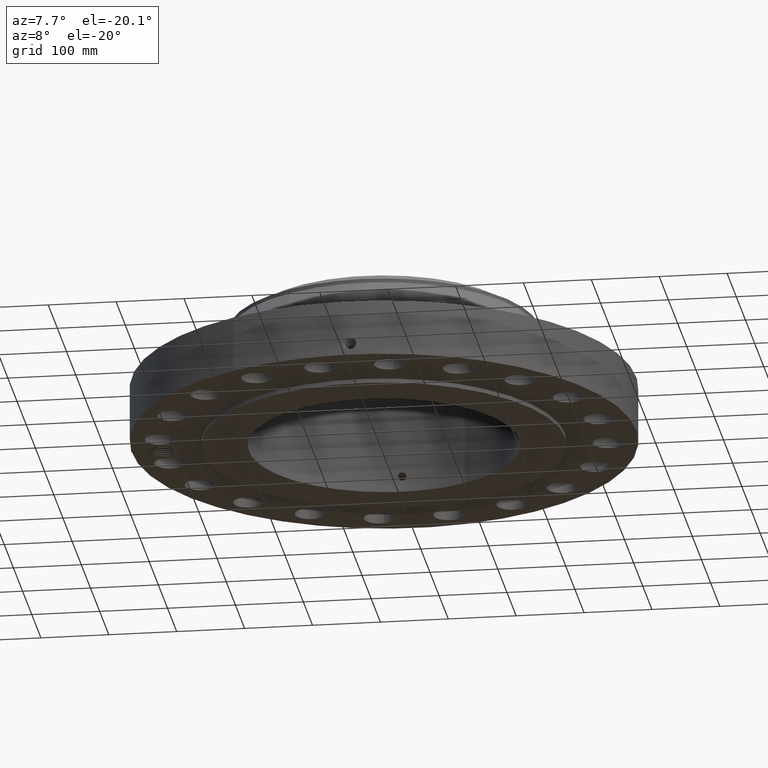
[diagram: clean part render]
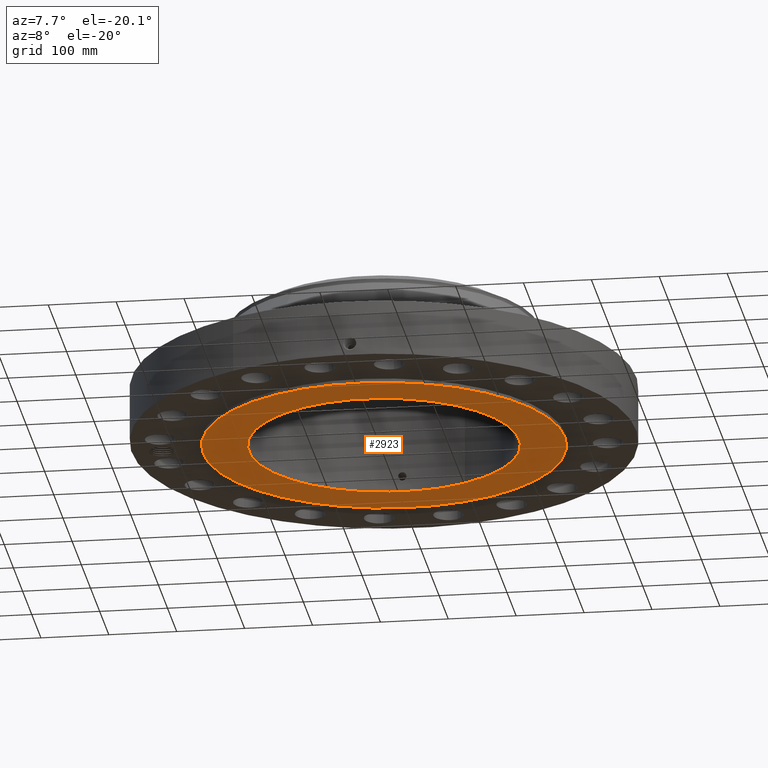
[diagram: same view with one face highlighted and labeled with its STEP entity id]
A machine part, auxiliary view. The second image highlights one B-rep face of the part: STEP entity #2923.
In plain terms, the highlighted planar face has unit normal (0, 0, -1).
Its self-contained STEP definition (entity closure, byte-faithful):
#1586=AXIS2_PLACEMENT_3D('Circle Axis2P3D',#1584,#1585,$) ;
#1612=AXIS2_PLACEMENT_3D('Circle Axis2P3D',#1610,#1611,$) ;
#2899=AXIS2_PLACEMENT_3D('Plane Axis2P3D',#2896,#2897,#2898) ;
#2907=AXIS2_PLACEMENT_3D('Circle Axis2P3D',#2905,#2906,$) ;
#2916=AXIS2_PLACEMENT_3D('Circle Axis2P3D',#2914,#2915,$) ;
#1584=CARTESIAN_POINT('Axis2P3D Location',(0.,0.,1.1189649382E-015)) ;
#1588=CARTESIAN_POINT('Vertex',(5.03396815536,9.21461689989,5.59482469102E-016)) ;
#1590=CARTESIAN_POINT('Vertex',(-5.03396815536,-9.21461689989,5.59482469102E-016)) ;
#1610=CARTESIAN_POINT('Axis2P3D Location',(0.,0.,1.1189649382E-015)) ;
#2896=CARTESIAN_POINT('Axis2P3D Location',(0.,7.84400000003,0.)) ;
#2905=CARTESIAN_POINT('Axis2P3D Location',(0.,0.,0.)) ;
#2909=CARTESIAN_POINT('Vertex',(3.76061392483,6.8837576155,-5.53887644411E-014)) ;
#2911=CARTESIAN_POINT('Vertex',(-3.76061392483,-6.8837576155,-5.53887644411E-014)) ;
#2914=CARTESIAN_POINT('Axis2P3D Location',(0.,0.,0.)) ;
#1585=DIRECTION('Axis2P3D Direction',(0.,0.,-0.0393700787402)) ;
#1611=DIRECTION('Axis2P3D Direction',(0.,0.,-0.0393700787402)) ;
#2897=DIRECTION('Axis2P3D Direction',(0.,0.,-0.0393700787402)) ;
#2898=DIRECTION('Axis2P3D XDirection',(0.0393700787402,0.,0.)) ;
#2906=DIRECTION('Axis2P3D Direction',(0.,0.,-0.0393700787402)) ;
#2915=DIRECTION('Axis2P3D Direction',(0.,0.,-0.0393700787402)) ;
#2902=ORIENTED_EDGE('',*,*,#1614,.T.) ;
#2903=ORIENTED_EDGE('',*,*,#1592,.T.) ;
#2920=ORIENTED_EDGE('',*,*,#2913,.F.) ;
#2921=ORIENTED_EDGE('',*,*,#2918,.F.) ;
#2922=FACE_BOUND('',#2919,.T.) ;
#2923=ADVANCED_FACE('PartBody',(#2904,#2922),#2900,.T.) ;
#1587=CIRCLE('generated circle',#1586,10.5) ;
#1613=CIRCLE('generated circle',#1612,10.5) ;
#2908=CIRCLE('generated circle',#2907,7.84400000003) ;
#2917=CIRCLE('generated circle',#2916,7.84400000003) ;
#1592=EDGE_CURVE('',#1589,#1591,#1587,.T.) ;
#1614=EDGE_CURVE('',#1591,#1589,#1613,.T.) ;
#2913=EDGE_CURVE('',#2910,#2912,#2908,.T.) ;
#2918=EDGE_CURVE('',#2912,#2910,#2917,.T.) ;
#2901=EDGE_LOOP('',(#2902,#2903)) ;
#2919=EDGE_LOOP('',(#2920,#2921)) ;
#2904=FACE_OUTER_BOUND('',#2901,.T.) ;
#2900=PLANE('',#2899) ;
#1589=VERTEX_POINT('',#1588) ;
#1591=VERTEX_POINT('',#1590) ;
#2910=VERTEX_POINT('',#2909) ;
#2912=VERTEX_POINT('',#2911) ;